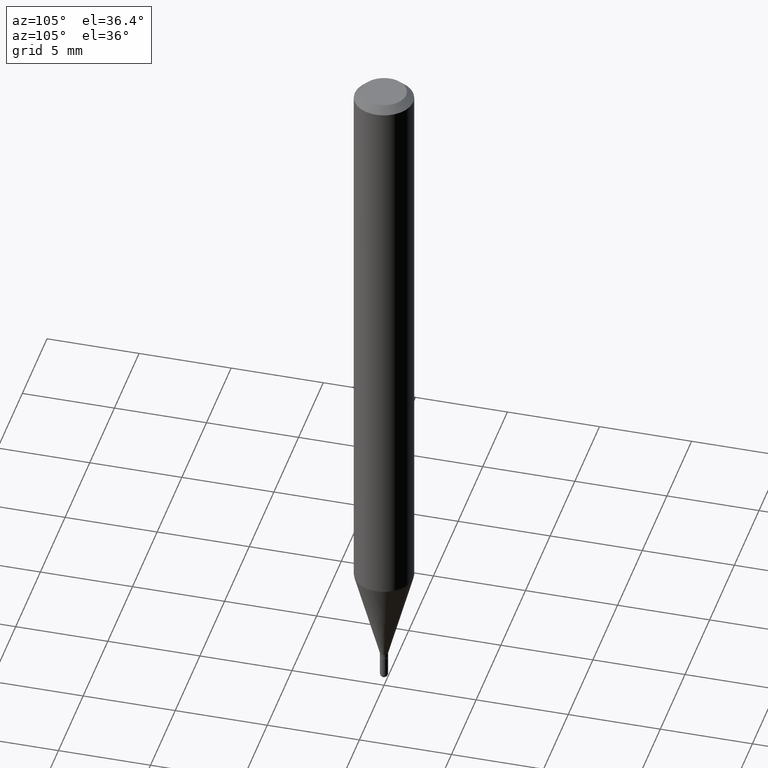
[diagram: clean part render]
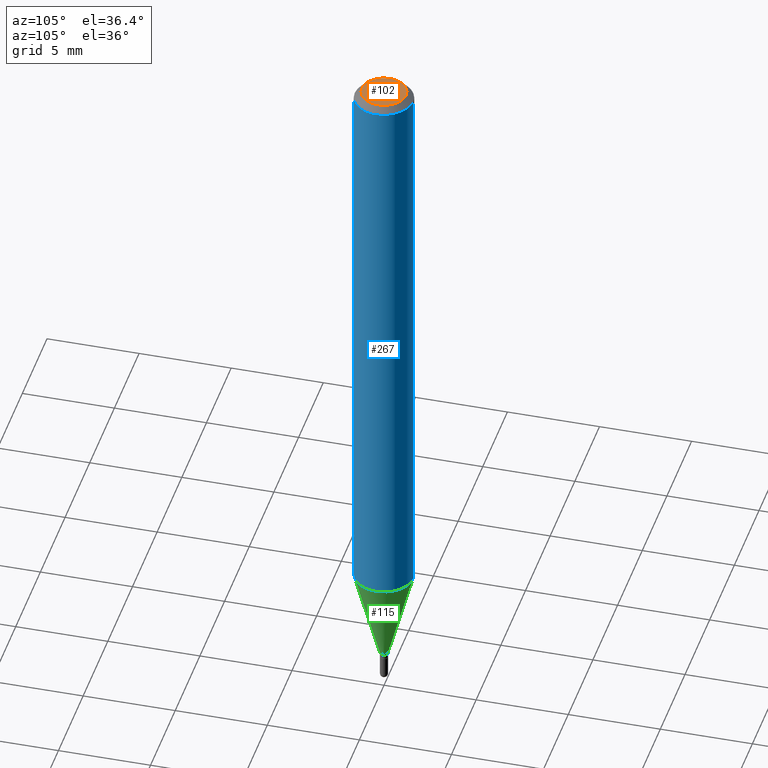
[diagram: same view with three faces highlighted in distinct colors, each labeled with its STEP entity id]
A machine part, auxiliary view with three faces highlighted in distinct colors.
Their STEP definitions:

[orange] entity #102 — the highlighted planar face has unit normal (0, -0, -1).
#6 = VERTEX_POINT ( 'NONE', #450 ) ;
#31 = PLANE ( 'NONE',  #249 ) ;
#46 = EDGE_CURVE ( 'NONE', #6, #307, #259, .T. ) ;
#54 = CARTESIAN_POINT ( 'NONE',  ( 3.316907271900976096E-16, 0.04749999999999999362, -1.702760392775686782E-16 ) ) ;
#102 = ADVANCED_FACE ( 'NONE', ( #110 ), #31, .F. ) ;
#110 = FACE_OUTER_BOUND ( 'NONE', #214, .T. ) ;
#112 = AXIS2_PLACEMENT_3D ( 'NONE', #456, #494, #215 ) ;
#129 = ORIENTED_EDGE ( 'NONE', *, *, #138, .T. ) ;
#138 = EDGE_CURVE ( 'NONE', #307, #6, #511, .T. ) ;
#188 = DIRECTION ( 'NONE',  ( -6.982962677686266711E-15, -1.000000000000000000, 3.491503060384354605E-15 ) ) ;
#214 = EDGE_LOOP ( 'NONE', ( #129, #301 ) ) ;
#215 = DIRECTION ( 'NONE',  ( -6.982962677686266711E-15, -1.000000000000000000, 3.491503060384354605E-15 ) ) ;
#219 = AXIS2_PLACEMENT_3D ( 'NONE', #262, #359, #188 ) ;
#249 = AXIS2_PLACEMENT_3D ( 'NONE', #54, #335, #290 ) ;
#259 = CIRCLE ( 'NONE', #219, 0.04749999999999999362 ) ;
#262 = CARTESIAN_POINT ( 'NONE',  ( 2.166497762715211531E-46, -3.093223053155036777E-32, -8.859287818623667781E-18 ) ) ;
#290 = DIRECTION ( 'NONE',  ( 6.982962677686265922E-15, 1.000000000000000000, -3.491503060384354605E-15 ) ) ;
#301 = ORIENTED_EDGE ( 'NONE', *, *, #46, .T. ) ;
#307 = VERTEX_POINT ( 'NONE', #356 ) ;
#335 = DIRECTION ( 'NONE',  ( 2.445453638113979897E-29, -3.491503060384354605E-15, -1.000000000000000000 ) ) ;
#356 = CARTESIAN_POINT ( 'NONE',  ( 3.840629472727447874E-16, 0.04749999999999999362, -1.747056831868805136E-16 ) ) ;
#359 = DIRECTION ( 'NONE',  ( -2.445453638113980177E-29, 3.491503060384354605E-15, 1.000000000000000000 ) ) ;
#450 = CARTESIAN_POINT ( 'NONE',  ( -3.773273898774340269E-16, -0.04749999999999999362, 1.569871075496331473E-16 ) ) ;
#456 = CARTESIAN_POINT ( 'NONE',  ( 2.166497762715211531E-46, -3.093223053155036777E-32, -8.859287818623667781E-18 ) ) ;
#494 = DIRECTION ( 'NONE',  ( -2.445453638113980177E-29, 3.491503060384354605E-15, 1.000000000000000000 ) ) ;
#511 = CIRCLE ( 'NONE', #112, 0.04749999999999999362 ) ;

[blue] entity #267 — the highlighted cylindrical surface (edge-blend (fillet) strip) has radius 1.5875 mm, axis along (-0, 0, 1).
#27 = CARTESIAN_POINT ( 'NONE',  ( 3.026173695096260823E-29, -4.320627695821710436E-15, -1.237469256391281247 ) ) ;
#28 = EDGE_CURVE ( 'NONE', #400, #353, #458, .T. ) ;
#34 = CARTESIAN_POINT ( 'NONE',  ( 4.440892098500927901E-16, 0.06249999999999569095, -1.237469256391281691 ) ) ;
#45 = AXIS2_PLACEMENT_3D ( 'NONE', #330, #282, #248 ) ;
#57 = FACE_OUTER_BOUND ( 'NONE', #158, .T. ) ;
#68 = DIRECTION ( 'NONE',  ( -2.445453638113980457E-29, 3.491503060384354605E-15, 1.000000000000000000 ) ) ;
#99 = DIRECTION ( 'NONE',  ( -6.982962677686265922E-15, -1.000000000000000000, 3.483106191921935554E-15 ) ) ;
#107 = CARTESIAN_POINT ( 'NONE',  ( -4.364351673553912750E-16, -0.06250000000000005551, -0.01499999999999979128 ) ) ;
#111 = DIRECTION ( 'NONE',  ( -2.445453638113980177E-29, 3.491503060384354605E-15, 1.000000000000000000 ) ) ;
#113 = VECTOR ( 'NONE', #68, 39.37007874015748143 ) ;
#150 = ORIENTED_EDGE ( 'NONE', *, *, #391, .F. ) ;
#151 = CARTESIAN_POINT ( 'NONE',  ( -4.364351673553615448E-16, -0.06250000000000432987, -1.237469256391281025 ) ) ;
#158 = EDGE_LOOP ( 'NONE', ( #315, #314, #340, #150 ) ) ;
#178 = CYLINDRICAL_SURFACE ( 'NONE', #45, 0.06250000000000000000 ) ;
#179 = VERTEX_POINT ( 'NONE', #151 ) ;
#196 = AXIS2_PLACEMENT_3D ( 'NONE', #27, #111, #293 ) ;
#212 = CIRCLE ( 'NONE', #196, 0.06250000000000000000 ) ;
#222 = EDGE_CURVE ( 'NONE', #179, #297, #212, .T. ) ;
#226 = CARTESIAN_POINT ( 'NONE',  ( 4.440892098500625669E-16, 0.06250000000000000000, -2.182189412740221628E-16 ) ) ;
#230 = DIRECTION ( 'NONE',  ( -2.445453638113980457E-29, 3.491503060384354605E-15, 1.000000000000000000 ) ) ;
#233 = CARTESIAN_POINT ( 'NONE',  ( -4.364351673553916201E-16, -0.06250000000000000000, 2.182189412740221628E-16 ) ) ;
#248 = DIRECTION ( 'NONE',  ( -6.982962677686265922E-15, -1.000000000000000000, 3.491503060384354605E-15 ) ) ;
#267 = ADVANCED_FACE ( 'NONE', ( #57 ), #178, .T. ) ;
#282 = DIRECTION ( 'NONE',  ( -2.445453638113980177E-29, 3.491503060384354605E-15, 1.000000000000000000 ) ) ;
#293 = DIRECTION ( 'NONE',  ( -6.982962677686265922E-15, -1.000000000000000000, 4.370956789862821150E-15 ) ) ;
#297 = VERTEX_POINT ( 'NONE', #34 ) ;
#314 = ORIENTED_EDGE ( 'NONE', *, *, #423, .T. ) ;
#315 = ORIENTED_EDGE ( 'NONE', *, *, #222, .T. ) ;
#330 = CARTESIAN_POINT ( 'NONE',  ( 0.000000000000000000, 0.000000000000000000, 0.000000000000000000 ) ) ;
#340 = ORIENTED_EDGE ( 'NONE', *, *, #28, .F. ) ;
#353 = VERTEX_POINT ( 'NONE', #420 ) ;
#385 = CARTESIAN_POINT ( 'NONE',  ( 3.668180457170972613E-31, -5.237254590576535705E-17, -0.01500000000000000812 ) ) ;
#391 = EDGE_CURVE ( 'NONE', #179, #400, #426, .T. ) ;
#400 = VERTEX_POINT ( 'NONE', #107 ) ;
#410 = VECTOR ( 'NONE', #230, 39.37007874015748143 ) ;
#420 = CARTESIAN_POINT ( 'NONE',  ( 4.440892098500930859E-16, 0.06249999999999995143, -0.01500000000000022669 ) ) ;
#423 = EDGE_CURVE ( 'NONE', #297, #353, #433, .T. ) ;
#426 = LINE ( 'NONE', #233, #113 ) ;
#433 = LINE ( 'NONE', #226, #410 ) ;
#446 = AXIS2_PLACEMENT_3D ( 'NONE', #385, #492, #99 ) ;
#458 = CIRCLE ( 'NONE', #446, 0.06250000000000000000 ) ;
#492 = DIRECTION ( 'NONE',  ( -2.445453638113980177E-29, 3.491503060384354605E-15, 1.000000000000000000 ) ) ;

[green] entity #115 — the highlighted conical surface has half-angle 15 deg.
#17 = LINE ( 'NONE', #493, #503 ) ;
#24 = CONICAL_SURFACE ( 'NONE', #136, 0.008499999999999924283, 0.2617993877991505181 ) ;
#27 = CARTESIAN_POINT ( 'NONE',  ( 3.026173695096260823E-29, -4.320627695821710436E-15, -1.237469256391281247 ) ) ;
#32 = VERTEX_POINT ( 'NONE', #444 ) ;
#34 = CARTESIAN_POINT ( 'NONE',  ( 4.440892098500927901E-16, 0.06249999999999569095, -1.237469256391281691 ) ) ;
#63 = VECTOR ( 'NONE', #195, 39.37007874015748854 ) ;
#75 = EDGE_LOOP ( 'NONE', ( #154, #78, #401, #322 ) ) ;
#78 = ORIENTED_EDGE ( 'NONE', *, *, #242, .T. ) ;
#98 = DIRECTION ( 'NONE',  ( 1.839019923739601893E-15, 0.2588190451025252359, 0.9659258262890670910 ) ) ;
#111 = DIRECTION ( 'NONE',  ( -2.445453638113980177E-29, 3.491503060384354605E-15, 1.000000000000000000 ) ) ;
#115 = ADVANCED_FACE ( 'NONE', ( #221 ), #24, .T. ) ;
#121 = VERTEX_POINT ( 'NONE', #286 ) ;
#136 = AXIS2_PLACEMENT_3D ( 'NONE', #324, #466, #247 ) ;
#151 = CARTESIAN_POINT ( 'NONE',  ( -4.364351673553615448E-16, -0.06250000000000432987, -1.237469256391281025 ) ) ;
#154 = ORIENTED_EDGE ( 'NONE', *, *, #407, .T. ) ;
#179 = VERTEX_POINT ( 'NONE', #151 ) ;
#182 = CARTESIAN_POINT ( 'NONE',  ( 3.519007785246017748E-29, -5.024272903893087103E-15, -1.439000000000000057 ) ) ;
#195 = DIRECTION ( 'NONE',  ( -1.807323732225331717E-15, -0.2588190451025184080, 0.9659258262890689783 ) ) ;
#196 = AXIS2_PLACEMENT_3D ( 'NONE', #27, #111, #293 ) ;
#212 = CIRCLE ( 'NONE', #196, 0.06250000000000000000 ) ;
#221 = FACE_OUTER_BOUND ( 'NONE', #75, .T. ) ;
#222 = EDGE_CURVE ( 'NONE', #179, #297, #212, .T. ) ;
#242 = EDGE_CURVE ( 'NONE', #32, #297, #17, .T. ) ;
#247 = DIRECTION ( 'NONE',  ( -6.982962677686266711E-15, -1.000000000000000000, 0.000000000000000000 ) ) ;
#286 = CARTESIAN_POINT ( 'NONE',  ( -5.935518276029754545E-17, -0.008500000000004949777, -1.439000000000000057 ) ) ;
#293 = DIRECTION ( 'NONE',  ( -6.982962677686265922E-15, -1.000000000000000000, 4.370956789862821150E-15 ) ) ;
#297 = VERTEX_POINT ( 'NONE', #34 ) ;
#304 = EDGE_CURVE ( 'NONE', #121, #179, #453, .T. ) ;
#322 = ORIENTED_EDGE ( 'NONE', *, *, #304, .F. ) ;
#324 = CARTESIAN_POINT ( 'NONE',  ( 3.519007785246017748E-29, -5.024272903893087103E-15, -1.439000000000000057 ) ) ;
#397 = CIRCLE ( 'NONE', #405, 0.008499999999999924283 ) ;
#401 = ORIENTED_EDGE ( 'NONE', *, *, #222, .F. ) ;
#405 = AXIS2_PLACEMENT_3D ( 'NONE', #182, #499, #424 ) ;
#407 = EDGE_CURVE ( 'NONE', #121, #32, #397, .T. ) ;
#424 = DIRECTION ( 'NONE',  ( -6.982962677686266711E-15, -1.000000000000000000, 0.000000000000000000 ) ) ;
#444 = CARTESIAN_POINT ( 'NONE',  ( 2.522426711948681826E-16, 0.008499999999994900524, -1.439000000000000057 ) ) ;
#453 = LINE ( 'NONE', #510, #63 ) ;
#466 = DIRECTION ( 'NONE',  ( -2.445453638113980177E-29, 3.491503060384354605E-15, 1.000000000000000000 ) ) ;
#493 = CARTESIAN_POINT ( 'NONE',  ( 6.039613253964316839E-17, 0.008499999999994900524, -1.439000000000000057 ) ) ;
#499 = DIRECTION ( 'NONE',  ( -2.445453638113980177E-29, 3.491503060384354605E-15, 1.000000000000000000 ) ) ;
#503 = VECTOR ( 'NONE', #98, 39.37007874015748854 ) ;
#510 = CARTESIAN_POINT ( 'NONE',  ( -5.935518276029754545E-17, -0.008500000000004949777, -1.439000000000000057 ) ) ;